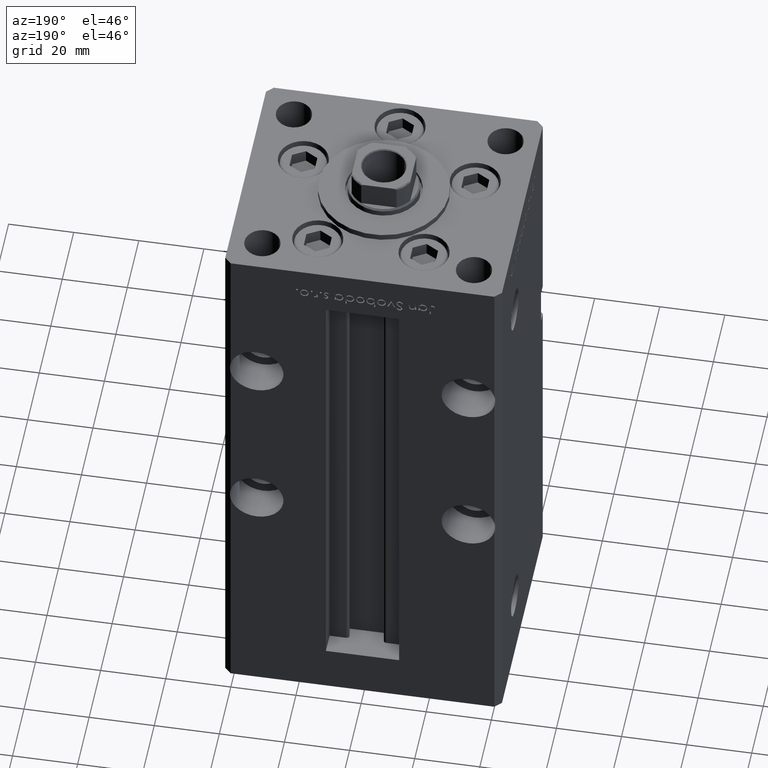
[diagram: clean part render]
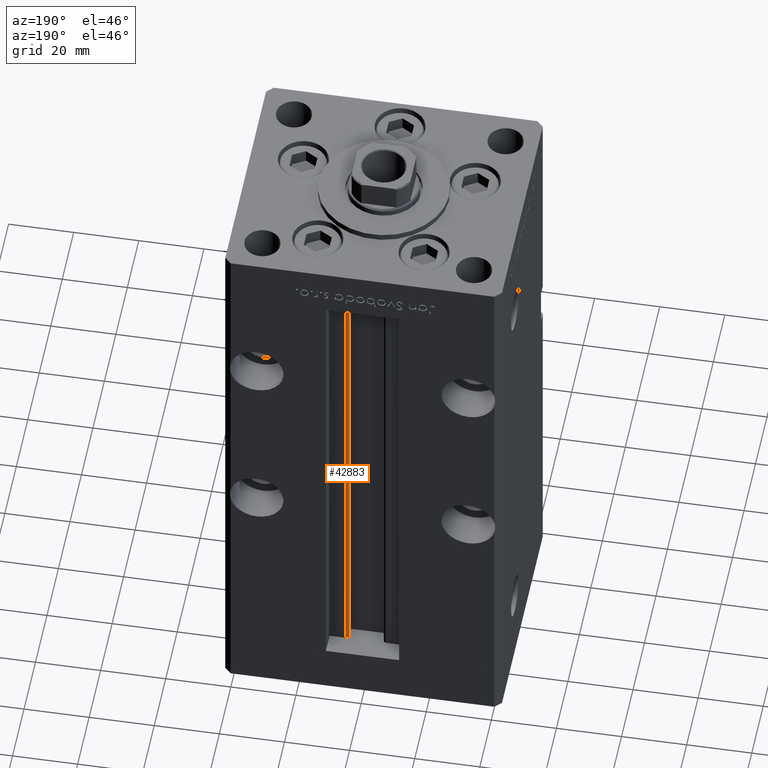
[diagram: same view with one face highlighted and labeled with its STEP entity id]
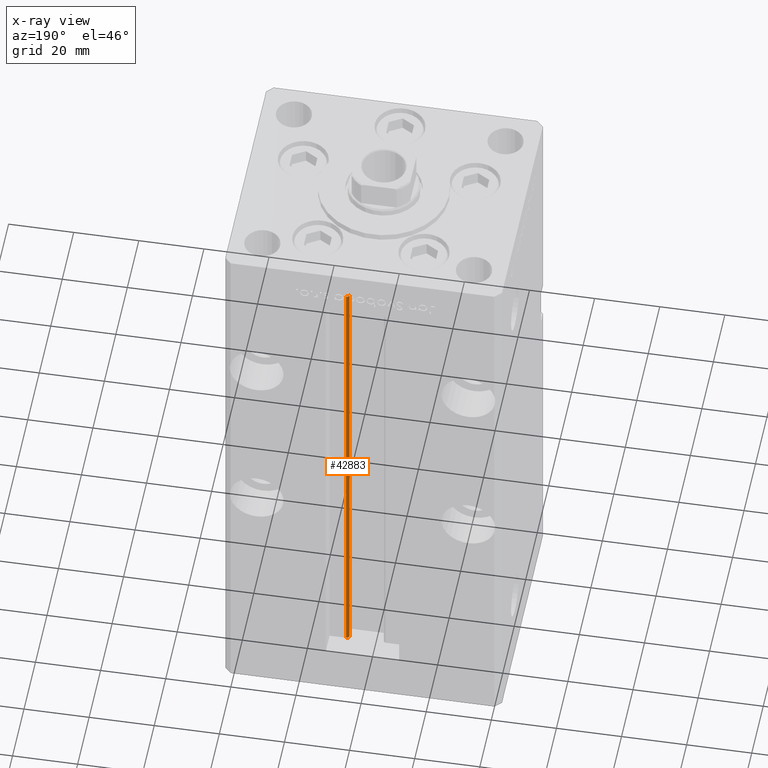
[diagram: x-ray of the same camera — body ghosted, the highlighted face saturated]
A machine part, auxiliary view. The second image highlights one B-rep face of the part: STEP entity #42883.
The next image is the same camera in x-ray: the body ghosted, the highlighted face saturated — about 0% of this face is hidden behind the body in this view.
In plain terms, the highlighted cylindrical surface (edge-blend (fillet) strip) has radius 0.9333 mm, axis along (0, 0, 1).
Its self-contained STEP definition (entity closure, byte-faithful):
#92 = EDGE_CURVE ( 'NONE', #26409, #39883, #39776, .T. ) ;
#1295 = CARTESIAN_POINT ( 'NONE',  ( 6.183333333333997928, 30.06666666666599852, 148.5000000000000000 ) ) ;
#2138 = CARTESIAN_POINT ( 'NONE',  ( 5.375042956467947164, 29.59999999999899245, 0.000000000000000000 ) ) ;
#3974 = CYLINDRICAL_SURFACE ( 'NONE', #36202, 0.9333333333340008142 ) ;
#4852 = VECTOR ( 'NONE', #6982, 1000.000000000000000 ) ;
#6254 = CARTESIAN_POINT ( 'NONE',  ( 5.375042956467947164, 29.59999999999899245, 0.000000000000000000 ) ) ;
#6982 = DIRECTION ( 'NONE',  ( -0.000000000000000000, -0.000000000000000000, 1.000000000000000000 ) ) ;
#7124 = ORIENTED_EDGE ( 'NONE', *, *, #8764, .F. ) ;
#8764 = EDGE_CURVE ( 'NONE', #39239, #18030, #49182, .T. ) ;
#10173 = DIRECTION ( 'NONE',  ( 0.000000000000000000, 0.000000000000000000, -1.000000000000000000 ) ) ;
#15049 = DIRECTION ( 'NONE',  ( -0.000000000000000000, -0.000000000000000000, 1.000000000000000000 ) ) ;
#15907 = VECTOR ( 'NONE', #15049, 1000.000000000000000 ) ;
#16219 = CARTESIAN_POINT ( 'NONE',  ( 6.183333333333997928, 31.00000000000000000, 148.5000000000000000 ) ) ;
#17700 = EDGE_CURVE ( 'NONE', #26409, #39239, #35210, .T. ) ;
#18030 = VERTEX_POINT ( 'NONE', #16219 ) ;
#20409 = DIRECTION ( 'NONE',  ( -0.000000000000000000, -0.000000000000000000, 1.000000000000000000 ) ) ;
#20933 = DIRECTION ( 'NONE',  ( 1.000000000000000000, 0.000000000000000000, 0.000000000000000000 ) ) ;
#23448 = CARTESIAN_POINT ( 'NONE',  ( 6.183333333333997928, 31.00000000000000000, 0.000000000000000000 ) ) ;
#23537 = CIRCLE ( 'NONE', #26107, 0.9333333333340008142 ) ;
#26107 = AXIS2_PLACEMENT_3D ( 'NONE', #1295, #10173, #38939 ) ;
#26409 = VERTEX_POINT ( 'NONE', #6254 ) ;
#28895 = DIRECTION ( 'NONE',  ( -0.000000000000000000, -0.000000000000000000, -1.000000000000000000 ) ) ;
#35210 = CIRCLE ( 'NONE', #40326, 0.9333333333340008142 ) ;
#35485 = ORIENTED_EDGE ( 'NONE', *, *, #92, .T. ) ;
#35761 = CARTESIAN_POINT ( 'NONE',  ( 6.183333333333997928, 31.00000000000000000, 0.000000000000000000 ) ) ;
#36202 = AXIS2_PLACEMENT_3D ( 'NONE', #37583, #20409, #20933 ) ;
#36970 = ORIENTED_EDGE ( 'NONE', *, *, #51383, .T. ) ;
#37000 = ORIENTED_EDGE ( 'NONE', *, *, #17700, .F. ) ;
#37583 = CARTESIAN_POINT ( 'NONE',  ( 6.183333333333997928, 30.06666666666599852, 0.000000000000000000 ) ) ;
#38939 = DIRECTION ( 'NONE',  ( 1.000000000000000000, 0.000000000000000000, 0.000000000000000000 ) ) ;
#39239 = VERTEX_POINT ( 'NONE', #23448 ) ;
#39776 = LINE ( 'NONE', #2138, #15907 ) ;
#39883 = VERTEX_POINT ( 'NONE', #44144 ) ;
#40326 = AXIS2_PLACEMENT_3D ( 'NONE', #41521, #28895, #45290 ) ;
#41521 = CARTESIAN_POINT ( 'NONE',  ( 6.183333333333997928, 30.06666666666599852, 0.000000000000000000 ) ) ;
#41604 = FACE_OUTER_BOUND ( 'NONE', #44551, .T. ) ;
#42883 = ADVANCED_FACE ( 'NONE', ( #41604 ), #3974, .T. ) ;
#44144 = CARTESIAN_POINT ( 'NONE',  ( 5.375042956467946276, 29.59999999999899600, 148.5000000000000000 ) ) ;
#44551 = EDGE_LOOP ( 'NONE', ( #7124, #37000, #35485, #36970 ) ) ;
#45290 = DIRECTION ( 'NONE',  ( 1.000000000000000000, 0.000000000000000000, 0.000000000000000000 ) ) ;
#49182 = LINE ( 'NONE', #35761, #4852 ) ;
#51383 = EDGE_CURVE ( 'NONE', #39883, #18030, #23537, .T. ) ;